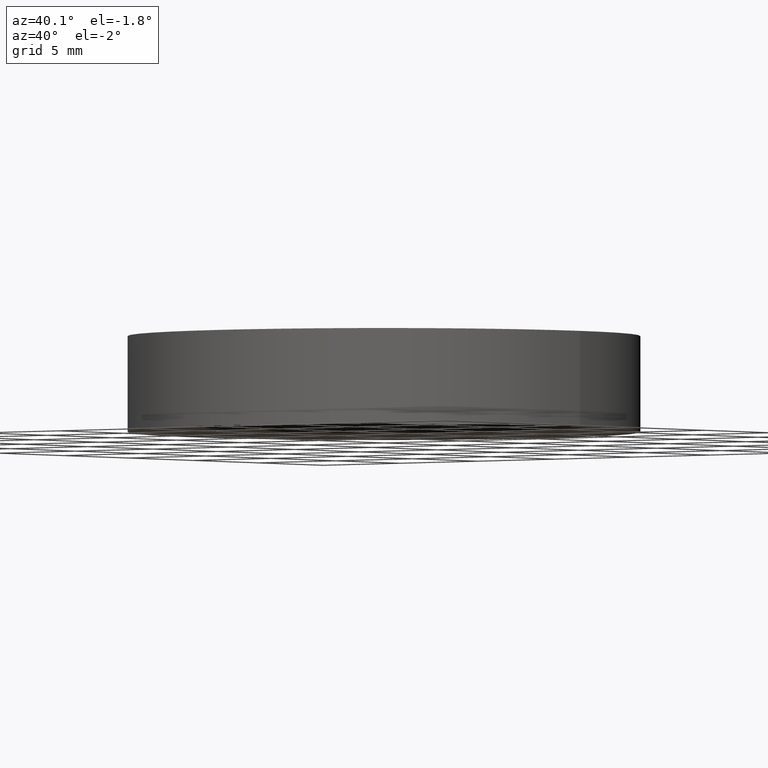
[diagram: clean part render]
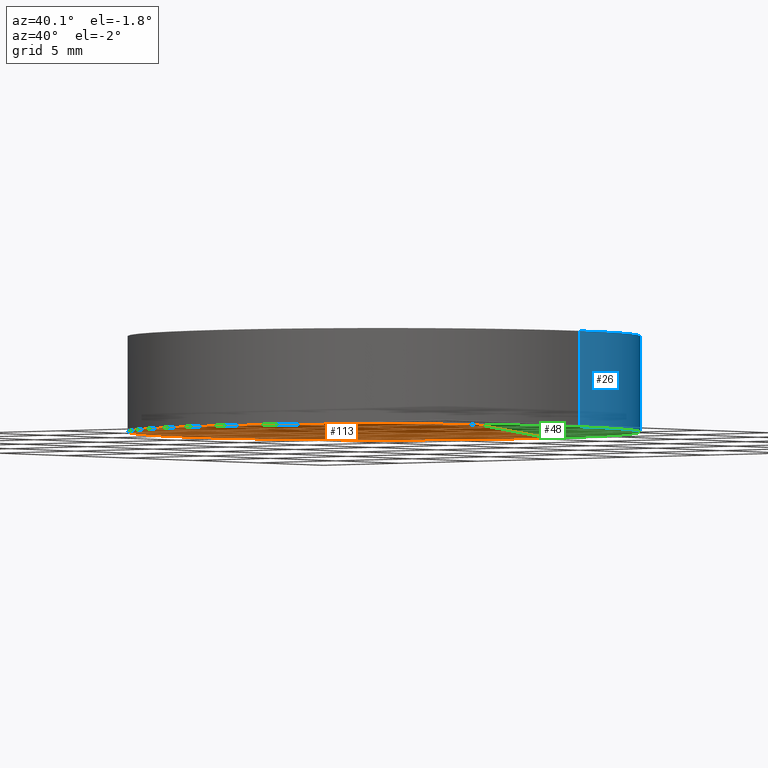
[diagram: same view with three faces highlighted in distinct colors, each labeled with its STEP entity id]
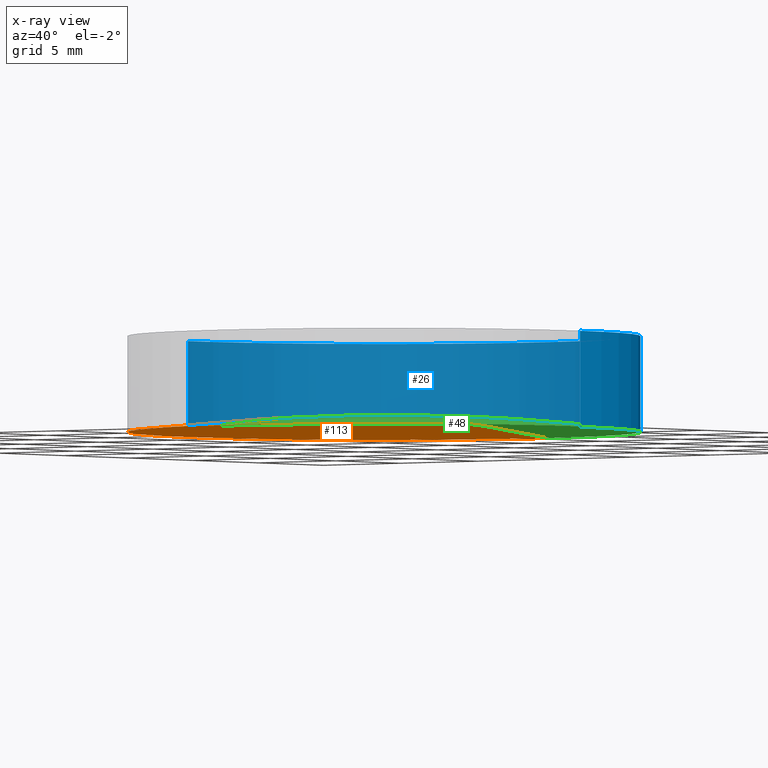
[diagram: x-ray of the same camera — body ghosted, the three highlighted faces saturated]
A machine part, auxiliary view with three faces highlighted in distinct colors.
The next image is the same camera in x-ray (body ghosted, the three faces saturated) — at least one of them is partly hidden behind the body in this view.
Their STEP definitions:

[orange] entity #113 — the highlighted face is a freeform B-spline surface patch.
#3 = AXIS2_PLACEMENT_3D ( 'NONE', #247, #107, #274 ) ;
#5 = DIRECTION ( 'NONE',  ( 2.786057141690520200E-016, 1.000000000000000000, -2.661129013962503900E-016 ) ) ;
#6 = ORIENTED_EDGE ( 'NONE', *, *, #273, .T. ) ;
#15 = AXIS2_PLACEMENT_3D ( 'NONE', #213, #27, #5 ) ;
#25 =( BOUNDED_SURFACE ( )  B_SPLINE_SURFACE ( 3, 3, ( 
 ( #133, #180, #208, #44 ),
 ( #136, #134, #250, #106 ),
 ( #185, #182, #245, #222 ),
 ( #49, #252, #272, #248 ) ),
 .UNSPECIFIED., .F., .F., .F. ) 
 B_SPLINE_SURFACE_WITH_KNOTS ( ( 4, 4 ),
 ( 4, 4 ),
 ( 0.0000000000000000000, 1.000000000000000000 ),
 ( 0.0000000000000000000, 1.000000000000000000 ),
 .UNSPECIFIED. ) 
 GEOMETRIC_REPRESENTATION_ITEM ( )  RATIONAL_B_SPLINE_SURFACE ( (
 ( 1.000000000000000000, 0.9987437524745305100, 0.9987437524745305100, 1.000000000000000000),
 ( 0.9949197584255219400, 0.9936698929409592000, 0.9936698929409592000, 0.9949197584255219400),
 ( 0.9949197584255219400, 0.9936698929409592000, 0.9936698929409592000, 0.9949197584255219400),
 ( 1.000000000000000000, 0.9987437524745305100, 0.9987437524745305100, 1.000000000000000000) ) ) 
 REPRESENTATION_ITEM ( '' )  SURFACE ( )  );
#27 = DIRECTION ( 'NONE',  ( 1.000000000000000000, -2.786057141690520200E-016, -2.407720383784880200E-016 ) ) ;
#42 = FACE_OUTER_BOUND ( 'NONE', #51, .T. ) ;
#44 = CARTESIAN_POINT ( 'NONE',  ( -1.734723475976807100E-015, 12.85162862928871900, -0.7948037943270905800 ) ) ;
#49 = CARTESIAN_POINT ( 'NONE',  ( -12.67846138054760500, -12.85162862928868900, -1.574237610048351300 ) ) ;
#51 = EDGE_LOOP ( 'NONE', ( #193, #6, #143 ) ) ;
#56 = CIRCLE ( 'NONE', #109, 12.69999999999999900 ) ;
#84 = CARTESIAN_POINT ( 'NONE',  ( -12.69999999999999900, 3.997792089092478900E-015, -0.7760897183650610200 ) ) ;
#92 = CIRCLE ( 'NONE', #15, 104.2999999999999800 ) ;
#106 = CARTESIAN_POINT ( 'NONE',  ( -1.734723475976807100E-015, 4.305750462270669500, 0.2662874024416657100 ) ) ;
#107 = DIRECTION ( 'NONE',  ( 0.0000000000000000000, 0.0000000000000000000, 1.000000000000000000 ) ) ;
#109 = AXIS2_PLACEMENT_3D ( 'NONE', #124, #146, #289 ) ;
#113 = ADVANCED_FACE ( 'NONE', ( #42 ), #25, .F. ) ;
#124 = CARTESIAN_POINT ( 'NONE',  ( 4.996003610813200500E-016, 2.442490654175340100E-015, -0.7760897183650610200 ) ) ;
#133 = CARTESIAN_POINT ( 'NONE',  ( -12.67846138054759900, 12.85162862928872200, -1.574237610048337300 ) ) ;
#134 = CARTESIAN_POINT ( 'NONE',  ( -8.557768192019953100, 4.305750462270672200, 0.003482508009887592500 ) ) ;
#136 = CARTESIAN_POINT ( 'NONE',  ( -12.80843556786028100, 4.305750462270673000, -0.5211368368587242500 ) ) ;
#140 = VERTEX_POINT ( 'NONE', #84 ) ;
#143 = ORIENTED_EDGE ( 'NONE', *, *, #291, .F. ) ;
#146 = DIRECTION ( 'NONE',  ( 0.0000000000000000000, 0.0000000000000000000, 1.000000000000000000 ) ) ;
#156 = CARTESIAN_POINT ( 'NONE',  ( 2.846395546936790300E-014, 12.69999999999993400, -0.7760897183650582500 ) ) ;
#167 = VERTEX_POINT ( 'NONE', #156 ) ;
#178 = CIRCLE ( 'NONE', #3, 12.69999999999999900 ) ;
#180 = CARTESIAN_POINT ( 'NONE',  ( -8.470927846836884700, 12.85162862928871900, -1.054941864040534100 ) ) ;
#182 = CARTESIAN_POINT ( 'NONE',  ( -8.557768192019956600, -4.305750462270641100, 0.003482508009873931100 ) ) ;
#185 = CARTESIAN_POINT ( 'NONE',  ( -12.80843556786028300, -4.305750462270641100, -0.5211368368587381300 ) ) ;
#193 = ORIENTED_EDGE ( 'NONE', *, *, #219, .F. ) ;
#208 = CARTESIAN_POINT ( 'NONE',  ( -4.239458280148771700, 12.85162862928871900, -0.7948037943270907000 ) ) ;
#213 = CARTESIAN_POINT ( 'NONE',  ( 0.0000000000000000000, 1.421085471520200100E-014, -104.3000000000000000 ) ) ;
#219 = EDGE_CURVE ( 'NONE', #167, #140, #178, .T. ) ;
#222 = CARTESIAN_POINT ( 'NONE',  ( -5.204170427930421300E-015, -4.305750462270643700, 0.2662874024416520000 ) ) ;
#245 = CARTESIAN_POINT ( 'NONE',  ( -4.282919401184623900, -4.305750462270642800, 0.2662874024416518900 ) ) ;
#247 = CARTESIAN_POINT ( 'NONE',  ( 4.996003610813200500E-016, 2.442490654175340100E-015, -0.7760897183650610200 ) ) ;
#248 = CARTESIAN_POINT ( 'NONE',  ( -8.673617379884035500E-015, -12.85162862928869200, -0.7948037943271044600 ) ) ;
#250 = CARTESIAN_POINT ( 'NONE',  ( -4.282919401184621200, 4.305750462270669500, 0.2662874024416655400 ) ) ;
#252 = CARTESIAN_POINT ( 'NONE',  ( -8.470927846836891800, -12.85162862928869000, -1.054941864040548100 ) ) ;
#262 = VERTEX_POINT ( 'NONE', #281 ) ;
#272 = CARTESIAN_POINT ( 'NONE',  ( -4.239458280148777000, -12.85162862928869000, -0.7948037943271045700 ) ) ;
#273 = EDGE_CURVE ( 'NONE', #167, #262, #92, .T. ) ;
#274 = DIRECTION ( 'NONE',  ( 1.000000000000000000, 0.0000000000000000000, 0.0000000000000000000 ) ) ;
#281 = CARTESIAN_POINT ( 'NONE',  ( 2.138737032947402200E-014, -12.69999999999991900, -0.7760897183650582500 ) ) ;
#289 = DIRECTION ( 'NONE',  ( 1.000000000000000000, 0.0000000000000000000, 0.0000000000000000000 ) ) ;
#291 = EDGE_CURVE ( 'NONE', #140, #262, #56, .T. ) ;

[blue] entity #26 — the highlighted cylindrical surface (partial cylindrical patch) has radius 12.7 mm, axis along (0, 0, 1).
#1 = LINE ( 'NONE', #70, #239 ) ;
#3 = AXIS2_PLACEMENT_3D ( 'NONE', #247, #107, #274 ) ;
#18 = CARTESIAN_POINT ( 'NONE',  ( 12.69999999999999900, 2.442490654175340100E-015, 3.976089718365059400 ) ) ;
#20 = VERTEX_POINT ( 'NONE', #18 ) ;
#23 = CARTESIAN_POINT ( 'NONE',  ( -12.69999999999999900, 3.997792089092478900E-015, 3.976089718365059400 ) ) ;
#24 = DIRECTION ( 'NONE',  ( 1.000000000000000000, 8.881784197001252300E-016, 0.0000000000000000000 ) ) ;
#26 = ADVANCED_FACE ( 'NONE', ( #57 ), #98, .T. ) ;
#41 = AXIS2_PLACEMENT_3D ( 'NONE', #62, #153, #105 ) ;
#47 = CARTESIAN_POINT ( 'NONE',  ( 4.996003610813200500E-016, 2.442490654175340100E-015, -0.7760897183650610200 ) ) ;
#57 = FACE_OUTER_BOUND ( 'NONE', #161, .T. ) ;
#62 = CARTESIAN_POINT ( 'NONE',  ( 4.996003610813200500E-016, 2.442490654175340100E-015, -0.7760897183650610200 ) ) ;
#63 = CARTESIAN_POINT ( 'NONE',  ( -1.425310075416590300E-014, 12.69999999999996600, 3.976089718365062100 ) ) ;
#70 = CARTESIAN_POINT ( 'NONE',  ( -12.69999999999999900, 3.997792089092478900E-015, -0.7760897183650610200 ) ) ;
#80 = ORIENTED_EDGE ( 'NONE', *, *, #249, .T. ) ;
#84 = CARTESIAN_POINT ( 'NONE',  ( -12.69999999999999900, 3.997792089092478900E-015, -0.7760897183650610200 ) ) ;
#87 = CARTESIAN_POINT ( 'NONE',  ( 12.69999999999999900, 2.442490654175340100E-015, -0.7760897183650610200 ) ) ;
#91 = DIRECTION ( 'NONE',  ( -0.0000000000000000000, -0.0000000000000000000, -1.000000000000000000 ) ) ;
#98 = CYLINDRICAL_SURFACE ( 'NONE', #41, 12.69999999999999900 ) ;
#105 = DIRECTION ( 'NONE',  ( 1.000000000000000000, 0.0000000000000000000, 0.0000000000000000000 ) ) ;
#107 = DIRECTION ( 'NONE',  ( 0.0000000000000000000, 0.0000000000000000000, 1.000000000000000000 ) ) ;
#108 = DIRECTION ( 'NONE',  ( -0.0000000000000000000, -0.0000000000000000000, -1.000000000000000000 ) ) ;
#112 = ORIENTED_EDGE ( 'NONE', *, *, #132, .T. ) ;
#118 = VERTEX_POINT ( 'NONE', #63 ) ;
#132 = EDGE_CURVE ( 'NONE', #234, #118, #137, .T. ) ;
#137 = CIRCLE ( 'NONE', #246, 12.69999999999999900 ) ;
#138 = DIRECTION ( 'NONE',  ( 0.0000000000000000000, 0.0000000000000000000, 1.000000000000000000 ) ) ;
#140 = VERTEX_POINT ( 'NONE', #84 ) ;
#153 = DIRECTION ( 'NONE',  ( 0.0000000000000000000, 0.0000000000000000000, 1.000000000000000000 ) ) ;
#156 = CARTESIAN_POINT ( 'NONE',  ( 2.846395546936790300E-014, 12.69999999999993400, -0.7760897183650582500 ) ) ;
#161 = EDGE_LOOP ( 'NONE', ( #218, #279, #220, #112, #80, #188 ) ) ;
#165 = EDGE_CURVE ( 'NONE', #174, #167, #184, .T. ) ;
#167 = VERTEX_POINT ( 'NONE', #156 ) ;
#168 = DIRECTION ( 'NONE',  ( 1.000000000000000000, -1.776356839400250500E-015, 0.0000000000000000000 ) ) ;
#174 = VERTEX_POINT ( 'NONE', #225 ) ;
#178 = CIRCLE ( 'NONE', #3, 12.69999999999999900 ) ;
#181 = EDGE_CURVE ( 'NONE', #174, #20, #235, .T. ) ;
#184 = CIRCLE ( 'NONE', #268, 12.69999999999999900 ) ;
#188 = ORIENTED_EDGE ( 'NONE', *, *, #181, .F. ) ;
#198 = AXIS2_PLACEMENT_3D ( 'NONE', #230, #91, #168 ) ;
#199 = EDGE_CURVE ( 'NONE', #140, #234, #1, .T. ) ;
#202 = VECTOR ( 'NONE', #209, 1000.000000000000000 ) ;
#209 = DIRECTION ( 'NONE',  ( 0.0000000000000000000, 0.0000000000000000000, 1.000000000000000000 ) ) ;
#218 = ORIENTED_EDGE ( 'NONE', *, *, #165, .T. ) ;
#219 = EDGE_CURVE ( 'NONE', #167, #140, #178, .T. ) ;
#220 = ORIENTED_EDGE ( 'NONE', *, *, #199, .T. ) ;
#223 = CARTESIAN_POINT ( 'NONE',  ( 4.996003610813200500E-016, 2.442490654175340100E-015, 3.976089718365059400 ) ) ;
#225 = CARTESIAN_POINT ( 'NONE',  ( 12.69999999999999900, 2.442490654175340100E-015, -0.7760897183650610200 ) ) ;
#230 = CARTESIAN_POINT ( 'NONE',  ( 4.996003610813200500E-016, 2.442490654175340100E-015, 3.976089718365059400 ) ) ;
#234 = VERTEX_POINT ( 'NONE', #23 ) ;
#235 = LINE ( 'NONE', #87, #202 ) ;
#239 = VECTOR ( 'NONE', #276, 1000.000000000000000 ) ;
#246 = AXIS2_PLACEMENT_3D ( 'NONE', #223, #108, #24 ) ;
#247 = CARTESIAN_POINT ( 'NONE',  ( 4.996003610813200500E-016, 2.442490654175340100E-015, -0.7760897183650610200 ) ) ;
#249 = EDGE_CURVE ( 'NONE', #118, #20, #288, .T. ) ;
#268 = AXIS2_PLACEMENT_3D ( 'NONE', #47, #138, #275 ) ;
#274 = DIRECTION ( 'NONE',  ( 1.000000000000000000, 0.0000000000000000000, 0.0000000000000000000 ) ) ;
#275 = DIRECTION ( 'NONE',  ( 1.000000000000000000, 0.0000000000000000000, 0.0000000000000000000 ) ) ;
#276 = DIRECTION ( 'NONE',  ( 0.0000000000000000000, 0.0000000000000000000, 1.000000000000000000 ) ) ;
#279 = ORIENTED_EDGE ( 'NONE', *, *, #219, .T. ) ;
#288 = CIRCLE ( 'NONE', #198, 12.69999999999999900 ) ;

[green] entity #48 — the highlighted face is a freeform B-spline surface patch.
#5 = DIRECTION ( 'NONE',  ( 2.786057141690520200E-016, 1.000000000000000000, -2.661129013962503900E-016 ) ) ;
#15 = AXIS2_PLACEMENT_3D ( 'NONE', #213, #27, #5 ) ;
#16 = CARTESIAN_POINT ( 'NONE',  ( 4.239458280148784100, 12.85162862928871500, -0.7948037943270877000 ) ) ;
#19 = CARTESIAN_POINT ( 'NONE',  ( 12.80843556786025900, -4.305750462270646400, -0.5211368368587260300 ) ) ;
#27 = DIRECTION ( 'NONE',  ( 1.000000000000000000, -2.786057141690520200E-016, -2.407720383784880200E-016 ) ) ;
#30 = AXIS2_PLACEMENT_3D ( 'NONE', #119, #90, #259 ) ;
#38 = CARTESIAN_POINT ( 'NONE',  ( 4.282919401184628300, -4.305750462270643700, 0.2662874024416550000 ) ) ;
#40 = CARTESIAN_POINT ( 'NONE',  ( 8.557768192019947800, -4.305750462270644600, 0.003482508009883364100 ) ) ;
#43 = CARTESIAN_POINT ( 'NONE',  ( 4.239458280148777000, -12.85162862928869200, -0.7948037943271016900 ) ) ;
#47 = CARTESIAN_POINT ( 'NONE',  ( 4.996003610813200500E-016, 2.442490654175340100E-015, -0.7760897183650610200 ) ) ;
#48 = ADVANCED_FACE ( 'NONE', ( #215 ), #171, .F. ) ;
#59 = CARTESIAN_POINT ( 'NONE',  ( 4.282919401184631000, 4.305750462270668600, 0.2662874024416685400 ) ) ;
#77 = CIRCLE ( 'NONE', #30, 12.69999999999999900 ) ;
#81 = CARTESIAN_POINT ( 'NONE',  ( 8.470927846836886500, 12.85162862928871500, -1.054941864040524800 ) ) ;
#83 = ORIENTED_EDGE ( 'NONE', *, *, #165, .F. ) ;
#90 = DIRECTION ( 'NONE',  ( 0.0000000000000000000, 0.0000000000000000000, 1.000000000000000000 ) ) ;
#92 = CIRCLE ( 'NONE', #15, 104.2999999999999800 ) ;
#102 = CARTESIAN_POINT ( 'NONE',  ( 8.470927846836879400, -12.85162862928869200, -1.054941864040538800 ) ) ;
#119 = CARTESIAN_POINT ( 'NONE',  ( 4.996003610813200500E-016, 2.442490654175340100E-015, -0.7760897183650610200 ) ) ;
#123 = ORIENTED_EDGE ( 'NONE', *, *, #240, .F. ) ;
#128 = CARTESIAN_POINT ( 'NONE',  ( 12.67846138054757600, -12.85162862928869600, -1.574237610048339500 ) ) ;
#130 = CARTESIAN_POINT ( 'NONE',  ( 2.850169424570362500E-014, 12.85162862928871900, -0.7948037943270869200 ) ) ;
#131 = CARTESIAN_POINT ( 'NONE',  ( 12.80843556786026300, 4.305750462270666800, -0.5211368368587127000 ) ) ;
#138 = DIRECTION ( 'NONE',  ( 0.0000000000000000000, 0.0000000000000000000, 1.000000000000000000 ) ) ;
#156 = CARTESIAN_POINT ( 'NONE',  ( 2.846395546936790300E-014, 12.69999999999993400, -0.7760897183650582500 ) ) ;
#165 = EDGE_CURVE ( 'NONE', #174, #167, #184, .T. ) ;
#167 = VERTEX_POINT ( 'NONE', #156 ) ;
#171 =( BOUNDED_SURFACE ( )  B_SPLINE_SURFACE ( 3, 3, ( 
 ( #130, #16, #81, #271 ),
 ( #242, #59, #293, #131 ),
 ( #179, #38, #40, #19 ),
 ( #203, #43, #102, #128 ) ),
 .UNSPECIFIED., .F., .F., .F. ) 
 B_SPLINE_SURFACE_WITH_KNOTS ( ( 4, 4 ),
 ( 4, 4 ),
 ( 0.0000000000000000000, 1.000000000000000000 ),
 ( 0.0000000000000000000, 1.000000000000000000 ),
 .UNSPECIFIED. ) 
 GEOMETRIC_REPRESENTATION_ITEM ( )  RATIONAL_B_SPLINE_SURFACE ( (
 ( 1.000000000000000000, 0.9987437524745305100, 0.9987437524745305100, 1.000000000000000000),
 ( 0.9949197584255219400, 0.9936698929409592000, 0.9936698929409592000, 0.9949197584255219400),
 ( 0.9949197584255219400, 0.9936698929409592000, 0.9936698929409592000, 0.9949197584255219400),
 ( 1.000000000000000000, 0.9987437524745305100, 0.9987437524745305100, 1.000000000000000000) ) ) 
 REPRESENTATION_ITEM ( '' )  SURFACE ( )  );
#174 = VERTEX_POINT ( 'NONE', #225 ) ;
#179 = CARTESIAN_POINT ( 'NONE',  ( 2.397703148098204700E-014, -4.305750462270642800, 0.2662874024416560000 ) ) ;
#184 = CIRCLE ( 'NONE', #268, 12.69999999999999900 ) ;
#203 = CARTESIAN_POINT ( 'NONE',  ( 2.134061990070679300E-014, -12.85162862928869200, -0.7948037943271008000 ) ) ;
#207 = ORIENTED_EDGE ( 'NONE', *, *, #273, .F. ) ;
#213 = CARTESIAN_POINT ( 'NONE',  ( 0.0000000000000000000, 1.421085471520200100E-014, -104.3000000000000000 ) ) ;
#215 = FACE_OUTER_BOUND ( 'NONE', #244, .T. ) ;
#225 = CARTESIAN_POINT ( 'NONE',  ( 12.69999999999999900, 2.442490654175340100E-015, -0.7760897183650610200 ) ) ;
#240 = EDGE_CURVE ( 'NONE', #262, #174, #77, .T. ) ;
#242 = CARTESIAN_POINT ( 'NONE',  ( 2.637624484613133400E-014, 4.305750462270669500, 0.2662874024416696500 ) ) ;
#244 = EDGE_LOOP ( 'NONE', ( #207, #83, #123 ) ) ;
#259 = DIRECTION ( 'NONE',  ( 1.000000000000000000, 0.0000000000000000000, 0.0000000000000000000 ) ) ;
#262 = VERTEX_POINT ( 'NONE', #281 ) ;
#268 = AXIS2_PLACEMENT_3D ( 'NONE', #47, #138, #275 ) ;
#271 = CARTESIAN_POINT ( 'NONE',  ( 12.67846138054758700, 12.85162862928871500, -1.574237610048325700 ) ) ;
#273 = EDGE_CURVE ( 'NONE', #167, #262, #92, .T. ) ;
#275 = DIRECTION ( 'NONE',  ( 1.000000000000000000, 0.0000000000000000000, 0.0000000000000000000 ) ) ;
#281 = CARTESIAN_POINT ( 'NONE',  ( 2.138737032947402200E-014, -12.69999999999991900, -0.7760897183650582500 ) ) ;
#293 = CARTESIAN_POINT ( 'NONE',  ( 8.557768192019951300, 4.305750462270667700, 0.003482508009896808700 ) ) ;